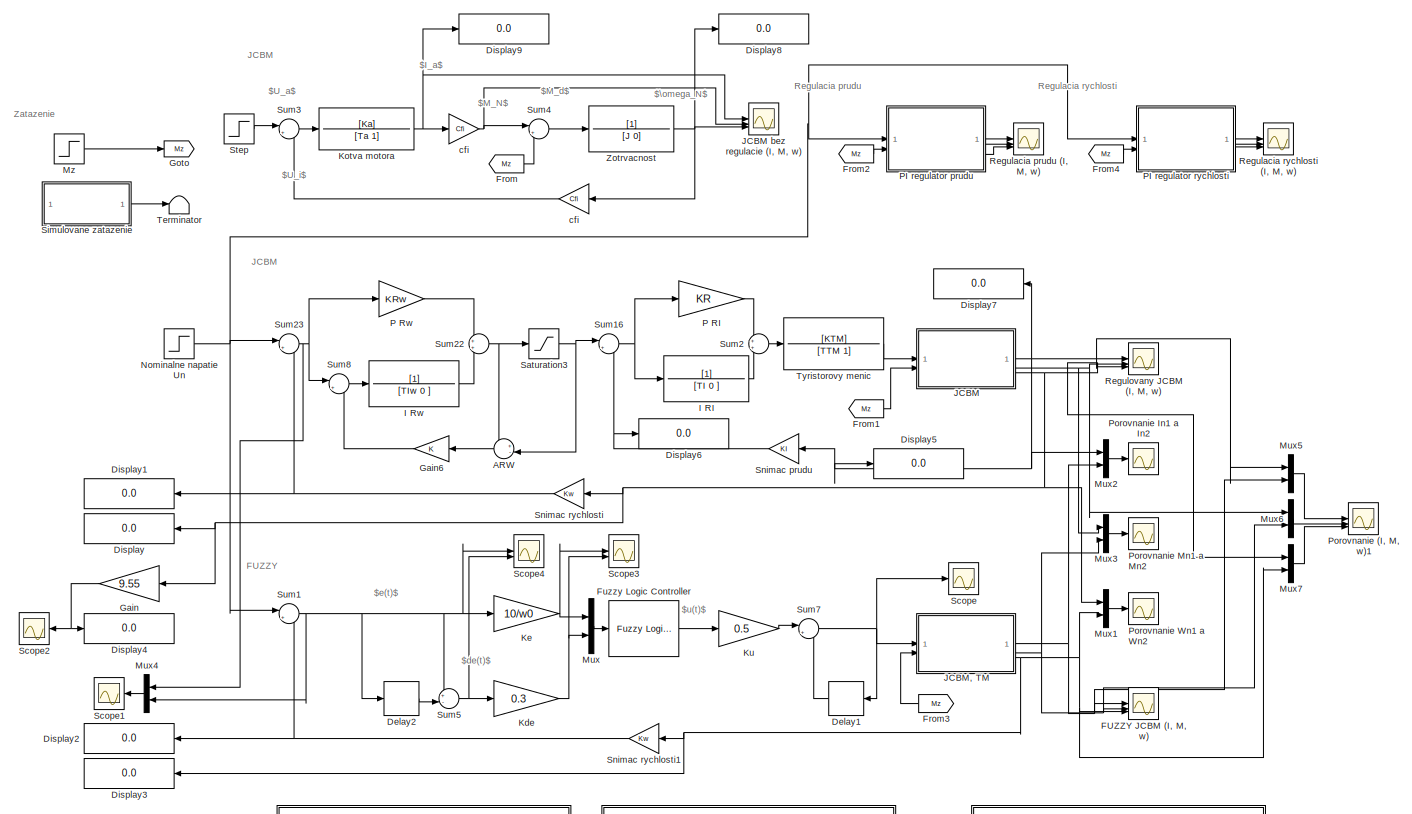
[diagram: root canvas - part 1/2, most of the canvas]
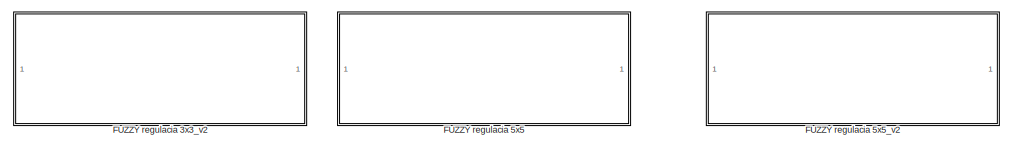
[diagram: root canvas - part 2/2, bottom center region]
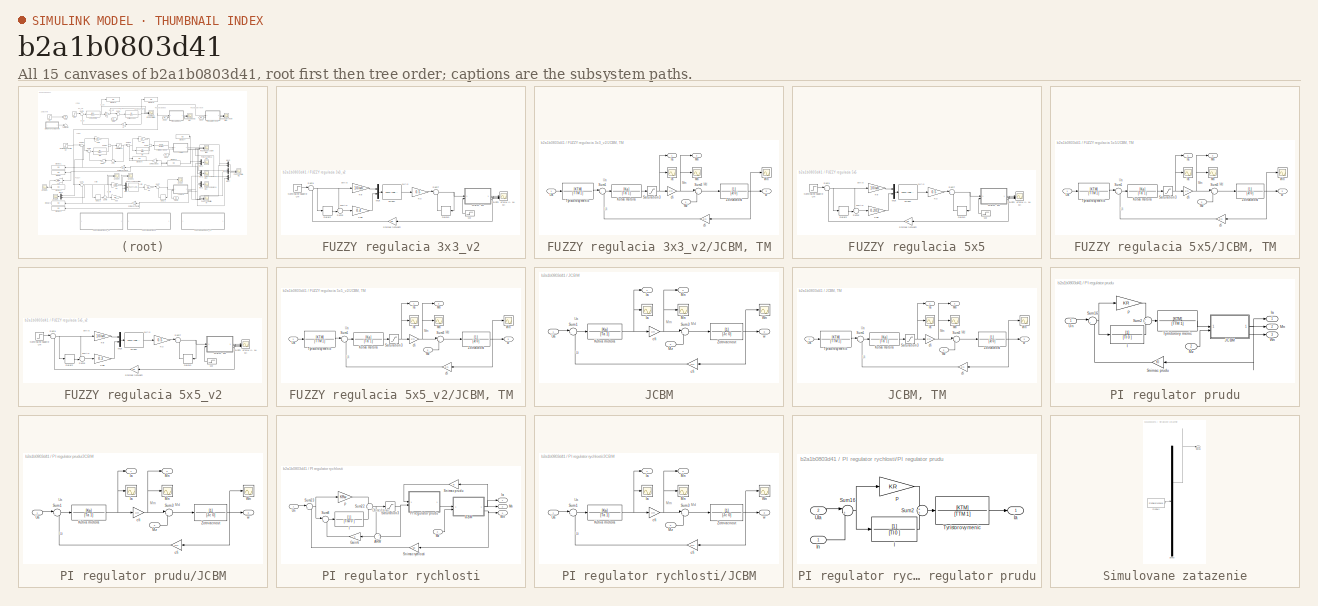
[diagram: thumbnail index - all 15 canvases of the model, root first then tree order]
MODEL slx_b2a1b0803d41
KIND model
CONFIG AbsTol = auto
CONFIG EnableMultiTasking = on
CONFIG FixedStep = auto
CONFIG MaxStep = auto
CONFIG MinStep = auto
CONFIG RelTol = 1e-6
CONFIG SampleTimeConstraint = Unconstrained
CONFIG SolverName = ode45
CONFIG StartTime = 0.0
CONFIG StopTime = 4
WORKSPACE source: mxarray member
WORKSPACE fuzzy33_v2: mamfis (value not decoded)
WORKSPACE fuzzy55: mamfis (value not decoded)
WORKSPACE fuzzy55_v2: mamfis (value not decoded)
BLOCK [Sum] ARW
  Inputs = +-|
BLOCK [Delay] Delay1
  DelayLength = 1
  InitialCondition = 0
  InputPortMap = u0
  SampleTime = 0.018
BLOCK [Delay] Delay2
  DelayLength = 1
  InitialCondition = 0
  InputPortMap = u0
  SampleTime = 0.018
BLOCK [Display] Display
  Decimation = 1
BLOCK [Display] Display1
  Decimation = 1
BLOCK [Display] Display2
  Decimation = 1
BLOCK [Display] Display3
  Decimation = 1
BLOCK [Display] Display4
  Decimation = 1
BLOCK [Display] Display5
  Decimation = 1
BLOCK [Display] Display6
  Decimation = 1
BLOCK [Display] Display7
  Decimation = 1
BLOCK [Display] Display8
  Decimation = 1
BLOCK [Display] Display9
  Decimation = 1
BLOCK [Scope] FUZZY JCBM (I, M, w)
  Floating = off
  NumInputPorts = 3
  ScopeSpecificationString = Simulink.scopes.TimeScopeBlockCfg('CurrentConfiguration', extmgr.ConfigurationSet(extmgr.Configuration('Core','General UI',true,'FigureColor',[1 1 1]),extmgr.Configuration('Core','Source UI',true),extmgr.Configuration('Sources','WiredSimulink',true,'DataLoggingVariableName','ScopeData8','DataLoggingLimitDataPoints',true,'DataLoggingSaveFormat','Array','DataLoggingDecimation','1','DataLoggingDecima...<+4525ch>
BLOCK [SubSystem] FUZZY regulacia 3x3_v2
BLOCK [Delay] FUZZY regulacia 3x3_v2/Delay1
  DelayLength = 1
  InitialCondition = 0
  InputPortMap = u0
  SampleTime = 0.018
BLOCK [Delay] FUZZY regulacia 3x3_v2/Delay2
  DelayLength = 1
  InitialCondition = 0
  InputPortMap = u0
  SampleTime = 0.018
BLOCK [Reference] FUZZY regulacia 3x3_v2/FUZZY  REF=fuzblock/Fuzzy Logic   (lib defined in mdl_858b3b3e7478)
Controller
  SourceBlock = fuzblock/Fuzzy Logic \nController
  SourceType = Fuzzy Inference System
BLOCK [Scope] FUZZY regulacia 3x3_v2/FUZZY JCBM (I, M, w)
  Floating = off
  NumInputPorts = 3
  ScopeSpecificationString = Simulink.scopes.TimeScopeBlockCfg('CurrentConfiguration', extmgr.ConfigurationSet(extmgr.Configuration('Core','General UI',true,'FigureColor',[1 1 1]),extmgr.Configuration('Core','Source UI',true),extmgr.Configuration('Sources','WiredSimulink',true,'DataLoggingVariableName','ScopeData8','DataLoggingLimitDataPoints',true,'DataLoggingSaveFormat','Array','DataLoggingDecimation','1','DataLoggingDecima...<+4514ch>  <repeated x3 — deduplicated; at blocks: FUZZY JCBM (I, M, w)>
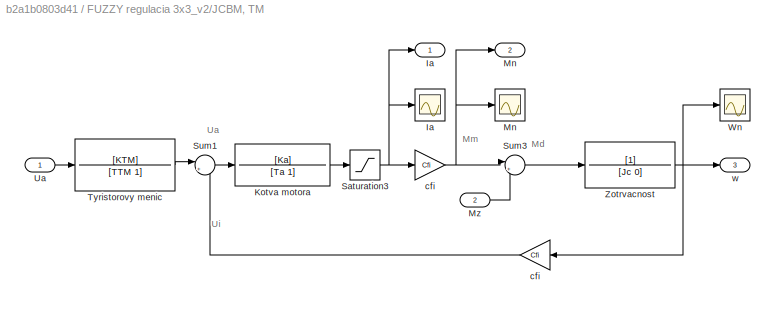
BLOCK [SubSystem] FUZZY regulacia 3x3_v2/JCBM, TM
BLOCK [Outport] FUZZY regulacia 3x3_v2/JCBM, TM/ Mn 
  Port = 2
BLOCK [Outport] FUZZY regulacia 3x3_v2/JCBM, TM/Ia
BLOCK [Scope] FUZZY regulacia 3x3_v2/JCBM, TM/Ia 
  Floating = off
  NumInputPorts = 1
  ScopeSpecificationString = Simulink.scopes.TimeScopeBlockCfg('CurrentConfiguration', extmgr.ConfigurationSet(extmgr.Configuration('Core','General UI',true),extmgr.Configuration('Core','Source UI',true),extmgr.Configuration('Sources','WiredSimulink',true,'DataLoggingVariableName','ScopeData3'),extmgr.Configuration('Visuals','Time Domain',true),extmgr.Configuration('Tools','Plot Navigation',true),extmgr.Configuration('Tools',...<+40ch>  <repeated x7 — deduplicated; at blocks: Ia>
BLOCK [TransferFcn] FUZZY regulacia 3x3_v2/JCBM, TM/Kotva motora
  Denominator = [Ta 1]
  Numerator = [Ka]
BLOCK [Scope] FUZZY regulacia 3x3_v2/JCBM, TM/Mn 
  Floating = off
  NumInputPorts = 1
  ScopeSpecificationString = Simulink.scopes.TimeScopeBlockCfg('CurrentConfiguration', extmgr.ConfigurationSet(extmgr.Configuration('Core','General UI',true),extmgr.Configuration('Core','Source UI',true),extmgr.Configuration('Sources','WiredSimulink',true,'DataLoggingVariableName','ScopeData2'),extmgr.Configuration('Visuals','Time Domain',true),extmgr.Configuration('Tools','Plot Navigation',true),extmgr.Configuration('Tools',...<+40ch>  <repeated x7 — deduplicated; at blocks: Mn>
BLOCK [Inport] FUZZY regulacia 3x3_v2/JCBM, TM/Mz
  Port = 2
BLOCK [Saturate] FUZZY regulacia 3x3_v2/JCBM, TM/Saturation3
  LowerLimit = -Imax
  UpperLimit = Imax
BLOCK [Sum] FUZZY regulacia 3x3_v2/JCBM, TM/Sum1
  Inputs = |+-
BLOCK [Sum] FUZZY regulacia 3x3_v2/JCBM, TM/Sum3
  Inputs = |+-
BLOCK [TransferFcn] FUZZY regulacia 3x3_v2/JCBM, TM/Tyristorovy menic
  Denominator = [TTM 1]
  Numerator = [KTM]
BLOCK [Inport] FUZZY regulacia 3x3_v2/JCBM, TM/Ua
BLOCK [Scope] FUZZY regulacia 3x3_v2/JCBM, TM/Wn
  Floating = off
  NumInputPorts = 1
  ScopeSpecificationString = Simulink.scopes.TimeScopeBlockCfg('CurrentConfiguration', extmgr.ConfigurationSet(extmgr.Configuration('Core','General UI',true),extmgr.Configuration('Core','Source UI',true),extmgr.Configuration('Sources','WiredSimulink',true,'DataLoggingVariableName','ScopeData4'),extmgr.Configuration('Visuals','Time Domain',true),extmgr.Configuration('Tools','Plot Navigation',true),extmgr.Configuration('Tools',...<+40ch>  <repeated x7 — deduplicated; at blocks: Wn>
BLOCK [TransferFcn] FUZZY regulacia 3x3_v2/JCBM, TM/Zotrvacnost
  Denominator = [Jc 0]
BLOCK [Gain] FUZZY regulacia 3x3_v2/JCBM, TM/cfi
  Gain = Cfi
BLOCK [Gain] FUZZY regulacia 3x3_v2/JCBM, TM/cfi 
  Gain = Cfi
BLOCK [Outport] FUZZY regulacia 3x3_v2/JCBM, TM/w 
  Port = 3
BLOCK [Gain] FUZZY regulacia 3x3_v2/Kde
  Gain = 0.4
BLOCK [Gain] FUZZY regulacia 3x3_v2/Ke
  Gain = 10/w0
BLOCK [Gain] FUZZY regulacia 3x3_v2/Ku
  Gain = 0.5
BLOCK [Mux] FUZZY regulacia 3x3_v2/Mux
  DisplayOption = bar
  Inputs = 2
BLOCK [Step] FUZZY regulacia 3x3_v2/Mz
  After = Mz
  SampleTime = 0
  Time = 2
BLOCK [Step] FUZZY regulacia 3x3_v2/Nominalne napatie Un
  After = 10
  SampleTime = 0
  Time = 0
BLOCK [Gain] FUZZY regulacia 3x3_v2/Snimac rychlosti
  Gain = Kw
BLOCK [Sum] FUZZY regulacia 3x3_v2/Sum1
  Inputs = |+-
BLOCK [Sum] FUZZY regulacia 3x3_v2/Sum5
  Inputs = +-|
BLOCK [Sum] FUZZY regulacia 3x3_v2/Sum7
  Inputs = |++
BLOCK [SubSystem] FUZZY regulacia 5x5
BLOCK [Delay] FUZZY regulacia 5x5/Delay1
  DelayLength = 1
  InitialCondition = 0
  InputPortMap = u0
  SampleTime = 0.018
BLOCK [Delay] FUZZY regulacia 5x5/Delay2
  DelayLength = 1
  InitialCondition = 0
  InputPortMap = u0
  SampleTime = 0.018
BLOCK [Reference] FUZZY regulacia 5x5/FUZZY  REF=fuzblock/Fuzzy Logic   (lib defined in mdl_858b3b3e7478)
Controller
  SourceBlock = fuzblock/Fuzzy Logic \nController
  SourceType = Fuzzy Inference System
BLOCK [Scope] FUZZY regulacia 5x5/FUZZY JCBM (I, M, w)
  Floating = off
  NumInputPorts = 3
BLOCK [SubSystem] FUZZY regulacia 5x5/JCBM, TM
BLOCK [Outport] FUZZY regulacia 5x5/JCBM, TM/ Mn 
  Port = 2
BLOCK [Outport] FUZZY regulacia 5x5/JCBM, TM/Ia
BLOCK [Scope] FUZZY regulacia 5x5/JCBM, TM/Ia 
  Floating = off
  NumInputPorts = 1
BLOCK [TransferFcn] FUZZY regulacia 5x5/JCBM, TM/Kotva motora
  Denominator = [Ta 1]
  Numerator = [Ka]
BLOCK [Scope] FUZZY regulacia 5x5/JCBM, TM/Mn 
  Floating = off
  NumInputPorts = 1
BLOCK [Inport] FUZZY regulacia 5x5/JCBM, TM/Mz
  Port = 2
BLOCK [Saturate] FUZZY regulacia 5x5/JCBM, TM/Saturation3
  LowerLimit = -Imax
  UpperLimit = Imax
BLOCK [Sum] FUZZY regulacia 5x5/JCBM, TM/Sum1
  Inputs = |+-
BLOCK [Sum] FUZZY regulacia 5x5/JCBM, TM/Sum3
  Inputs = |+-
BLOCK [TransferFcn] FUZZY regulacia 5x5/JCBM, TM/Tyristorovy menic
  Denominator = [TTM 1]
  Numerator = [KTM]
BLOCK [Inport] FUZZY regulacia 5x5/JCBM, TM/Ua
BLOCK [Scope] FUZZY regulacia 5x5/JCBM, TM/Wn
  Floating = off
  NumInputPorts = 1
BLOCK [TransferFcn] FUZZY regulacia 5x5/JCBM, TM/Zotrvacnost
  Denominator = [Jc 0]
BLOCK [Gain] FUZZY regulacia 5x5/JCBM, TM/cfi
  Gain = Cfi
BLOCK [Gain] FUZZY regulacia 5x5/JCBM, TM/cfi 
  Gain = Cfi
BLOCK [Outport] FUZZY regulacia 5x5/JCBM, TM/w 
  Port = 3
BLOCK [Gain] FUZZY regulacia 5x5/Kde
  Gain = 0.203
BLOCK [Gain] FUZZY regulacia 5x5/Ke
  Gain = 10/w0
BLOCK [Gain] FUZZY regulacia 5x5/Ku
  Gain = 0.5
BLOCK [Mux] FUZZY regulacia 5x5/Mux
  DisplayOption = bar
  Inputs = 2
BLOCK [Step] FUZZY regulacia 5x5/Mz
  After = Mz
  SampleTime = 0
  Time = 2
BLOCK [Step] FUZZY regulacia 5x5/Nominalne napatie Un
  After = 10
  SampleTime = 0
  Time = 0
BLOCK [Gain] FUZZY regulacia 5x5/Snimac rychlosti
  Gain = Kw
BLOCK [Sum] FUZZY regulacia 5x5/Sum1
  Inputs = |+-
BLOCK [Sum] FUZZY regulacia 5x5/Sum5
  Inputs = +-|
BLOCK [Sum] FUZZY regulacia 5x5/Sum7
  Inputs = |++
BLOCK [SubSystem] FUZZY regulacia 5x5_v2
BLOCK [Delay] FUZZY regulacia 5x5_v2/Delay1
  DelayLength = 1
  InitialCondition = 0
  InputPortMap = u0
  SampleTime = 0.018
BLOCK [Delay] FUZZY regulacia 5x5_v2/Delay2
  DelayLength = 1
  InitialCondition = 0
  InputPortMap = u0
  SampleTime = 0.018
BLOCK [Reference] FUZZY regulacia 5x5_v2/FUZZY  REF=fuzblock/Fuzzy Logic   (lib defined in mdl_858b3b3e7478)
Controller
  SourceBlock = fuzblock/Fuzzy Logic \nController
  SourceType = Fuzzy Inference System
BLOCK [Scope] FUZZY regulacia 5x5_v2/FUZZY JCBM (I, M, w)
  Floating = off
  NumInputPorts = 3
BLOCK [SubSystem] FUZZY regulacia 5x5_v2/JCBM, TM
BLOCK [Outport] FUZZY regulacia 5x5_v2/JCBM, TM/ Mn 
  Port = 2
BLOCK [Outport] FUZZY regulacia 5x5_v2/JCBM, TM/Ia
BLOCK [Scope] FUZZY regulacia 5x5_v2/JCBM, TM/Ia 
  Floating = off
  NumInputPorts = 1
BLOCK [TransferFcn] FUZZY regulacia 5x5_v2/JCBM, TM/Kotva motora
  Denominator = [Ta 1]
  Numerator = [Ka]
BLOCK [Scope] FUZZY regulacia 5x5_v2/JCBM, TM/Mn 
  Floating = off
  NumInputPorts = 1
BLOCK [Inport] FUZZY regulacia 5x5_v2/JCBM, TM/Mz
  Port = 2
BLOCK [Saturate] FUZZY regulacia 5x5_v2/JCBM, TM/Saturation3
  LowerLimit = -Imax
  UpperLimit = Imax
BLOCK [Sum] FUZZY regulacia 5x5_v2/JCBM, TM/Sum1
  Inputs = |+-
BLOCK [Sum] FUZZY regulacia 5x5_v2/JCBM, TM/Sum3
  Inputs = |+-
BLOCK [TransferFcn] FUZZY regulacia 5x5_v2/JCBM, TM/Tyristorovy menic
  Denominator = [TTM 1]
  Numerator = [KTM]
BLOCK [Inport] FUZZY regulacia 5x5_v2/JCBM, TM/Ua
BLOCK [Scope] FUZZY regulacia 5x5_v2/JCBM, TM/Wn
  Floating = off
  NumInputPorts = 1
BLOCK [TransferFcn] FUZZY regulacia 5x5_v2/JCBM, TM/Zotrvacnost
  Denominator = [Jc 0]
BLOCK [Gain] FUZZY regulacia 5x5_v2/JCBM, TM/cfi
  Gain = Cfi
BLOCK [Gain] FUZZY regulacia 5x5_v2/JCBM, TM/cfi 
  Gain = Cfi
BLOCK [Outport] FUZZY regulacia 5x5_v2/JCBM, TM/w 
  Port = 3
BLOCK [Gain] FUZZY regulacia 5x5_v2/Kde
  Gain = 0.3
BLOCK [Gain] FUZZY regulacia 5x5_v2/Ke
  Gain = 10/w0
BLOCK [Gain] FUZZY regulacia 5x5_v2/Ku
  Gain = 0.5
BLOCK [Mux] FUZZY regulacia 5x5_v2/Mux
  DisplayOption = bar
  Inputs = 2
BLOCK [Step] FUZZY regulacia 5x5_v2/Mz
  After = Mz
  SampleTime = 0
  Time = 2
BLOCK [Step] FUZZY regulacia 5x5_v2/Nominalne napatie Un
  After = 10
  SampleTime = 0
  Time = 0
BLOCK [Gain] FUZZY regulacia 5x5_v2/Snimac rychlosti
  Gain = Kw
BLOCK [Sum] FUZZY regulacia 5x5_v2/Sum1
  Inputs = |+-
BLOCK [Sum] FUZZY regulacia 5x5_v2/Sum5
  Inputs = +-|
BLOCK [Sum] FUZZY regulacia 5x5_v2/Sum7
  Inputs = |++
BLOCK [From] From
  GotoTag = Mz
BLOCK [From] From1
  GotoTag = Mz
BLOCK [From] From2
  GotoTag = Mz
BLOCK [From] From3
  GotoTag = Mz
BLOCK [From] From4
  GotoTag = Mz
BLOCK [Reference] Fuzzy Logic Controller  REF=fuzblock/Fuzzy Logic   (lib defined in mdl_858b3b3e7478)
Controller
  SourceBlock = fuzblock/Fuzzy Logic \nController
  SourceType = Fuzzy Inference System
BLOCK [Gain] Gain
  Gain = 9.55
BLOCK [Gain] Gain6
  NameLocation = top
BLOCK [Goto] Goto
  GotoTag = Mz
BLOCK [TransferFcn] I RI
  Denominator = [TI 0 ]
BLOCK [TransferFcn] I Rw
  Denominator = [TIw 0 ]
BLOCK [SubSystem] JCBM
BLOCK [Scope] JCBM bez regulacie (I, M, w)
  Floating = off
  NumInputPorts = 3
  ScopeSpecificationString = Simulink.scopes.TimeScopeBlockCfg('CurrentConfiguration', extmgr.ConfigurationSet(extmgr.Configuration('Core','General UI',true,'FigureColor',[1 1 1]),extmgr.Configuration('Core','Source UI',true),extmgr.Configuration('Sources','WiredSimulink',true,'DataLoggingVariableName','ScopeData1','DataLoggingLimitDataPoints',true,'DataLoggingSaveFormat','Array','DataLoggingDecimation','1','DataLoggingDecima...<+4529ch>
BLOCK [SubSystem] JCBM, TM
BLOCK [Outport] JCBM, TM/ Mn 
  Port = 2
BLOCK [Outport] JCBM, TM/Ia
BLOCK [Scope] JCBM, TM/Ia 
  Floating = off
  NumInputPorts = 1
BLOCK [TransferFcn] JCBM, TM/Kotva motora
  Denominator = [Ta 1]
  Numerator = [Ka]
BLOCK [Scope] JCBM, TM/Mn 
  Floating = off
  NumInputPorts = 1
BLOCK [Inport] JCBM, TM/Mz
  Port = 2
BLOCK [Saturate] JCBM, TM/Saturation3
  LowerLimit = -Imax
  UpperLimit = Imax
BLOCK [Sum] JCBM, TM/Sum1
  Inputs = |+-
BLOCK [Sum] JCBM, TM/Sum3
  Inputs = |+-
BLOCK [TransferFcn] JCBM, TM/Tyristorovy menic
  Denominator = [TTM 1]
  Numerator = [KTM]
BLOCK [Inport] JCBM, TM/Ua
BLOCK [Scope] JCBM, TM/Wn
  Floating = off
  NumInputPorts = 1
BLOCK [TransferFcn] JCBM, TM/Zotrvacnost
  Denominator = [Jc 0]
BLOCK [Gain] JCBM, TM/cfi
  Gain = Cfi
BLOCK [Gain] JCBM, TM/cfi 
  Gain = Cfi
BLOCK [Outport] JCBM, TM/w 
  Port = 3
BLOCK [Outport] JCBM/ Mn 
  Port = 2
BLOCK [Outport] JCBM/Ia
BLOCK [Scope] JCBM/Ia 
  Floating = off
  NumInputPorts = 1
BLOCK [TransferFcn] JCBM/Kotva motora
  Denominator = [Ta 1]
  Numerator = [Ka]
BLOCK [Scope] JCBM/Mn 
  Floating = off
  NumInputPorts = 1
BLOCK [Inport] JCBM/Mz
  Port = 2
BLOCK [Sum] JCBM/Sum1
  Inputs = |+-
BLOCK [Sum] JCBM/Sum3
  Inputs = |+-
BLOCK [Inport] JCBM/Ua
BLOCK [Scope] JCBM/Wn
  Floating = off
  NumInputPorts = 1
BLOCK [TransferFcn] JCBM/Zotrvacnost
  Denominator = [Jc 0]
BLOCK [Gain] JCBM/cfi
  Gain = Cfi
BLOCK [Gain] JCBM/cfi 
  Gain = Cfi
BLOCK [Outport] JCBM/w 
  Port = 3
BLOCK [Gain] Kde
  Gain = 0.3
BLOCK [Gain] Ke
  Gain = 10/w0
BLOCK [TransferFcn] Kotva motora
  Denominator = [Ta 1]
  Numerator = [Ka]
BLOCK [Gain] Ku
  Gain = 0.5
BLOCK [Mux] Mux
  DisplayOption = bar
  Inputs = 2
BLOCK [Mux] Mux1
  DisplayOption = bar
  Inputs = 2
BLOCK [Mux] Mux2
  DisplayOption = bar
  Inputs = 2
BLOCK [Mux] Mux3
  DisplayOption = bar
  Inputs = 2
BLOCK [Mux] Mux4
  DisplayOption = bar
  Inputs = 2
BLOCK [Mux] Mux5
  DisplayOption = bar
  Inputs = 2
BLOCK [Mux] Mux6
  DisplayOption = bar
  Inputs = 2
BLOCK [Mux] Mux7
  DisplayOption = bar
  Inputs = 2
BLOCK [Step] Mz
  After = Mz
  SampleTime = 0
  Time = 2
BLOCK [Step] Nominalne napatie Un
  After = 10
  SampleTime = 0
  Time = 0
BLOCK [Gain] P RI
  Gain = KR
BLOCK [Gain] P Rw
  Gain = KRw
BLOCK [SubSystem] PI regulator prudu
BLOCK [TransferFcn] PI regulator prudu/I
  Denominator = [TI 0 ]
BLOCK [Outport] PI regulator prudu/Ia
  NameLocation = right
BLOCK [SubSystem] PI regulator prudu/JCBM
BLOCK [Outport] PI regulator prudu/JCBM/ Mn 
  Port = 2
BLOCK [Outport] PI regulator prudu/JCBM/Ia
BLOCK [Scope] PI regulator prudu/JCBM/Ia 
  Floating = off
  NumInputPorts = 1
BLOCK [TransferFcn] PI regulator prudu/JCBM/Kotva motora
  Denominator = [Ta 1]
  Numerator = [Ka]
BLOCK [Scope] PI regulator prudu/JCBM/Mn 
  Floating = off
  NumInputPorts = 1
BLOCK [Inport] PI regulator prudu/JCBM/Mz
  Port = 2
BLOCK [Sum] PI regulator prudu/JCBM/Sum1
  Inputs = |+-
BLOCK [Sum] PI regulator prudu/JCBM/Sum3
  Inputs = |+-
BLOCK [Inport] PI regulator prudu/JCBM/Ua
BLOCK [Scope] PI regulator prudu/JCBM/Wn
  Floating = off
  NumInputPorts = 1
BLOCK [TransferFcn] PI regulator prudu/JCBM/Zotrvacnost
  Denominator = [Jc 0]
BLOCK [Gain] PI regulator prudu/JCBM/cfi
  Gain = Cfi
BLOCK [Gain] PI regulator prudu/JCBM/cfi 
  Gain = Cfi
BLOCK [Outport] PI regulator prudu/JCBM/w 
  Port = 3
BLOCK [Outport] PI regulator prudu/Mn
  NameLocation = right
  Port = 2
BLOCK [Inport] PI regulator prudu/Mz
  Port = 2
BLOCK [Gain] PI regulator prudu/P
  Gain = KR
BLOCK [Gain] PI regulator prudu/Snimac prudu
  Gain = KI
BLOCK [Sum] PI regulator prudu/Sum16
  Inputs = |+-
BLOCK [Sum] PI regulator prudu/Sum2
BLOCK [TransferFcn] PI regulator prudu/Tyristorovy menic
  Denominator = [TTM 1]
  Numerator = [KTM]
BLOCK [Inport] PI regulator prudu/Un
BLOCK [Outport] PI regulator prudu/Wn
  NameLocation = right
  Port = 3
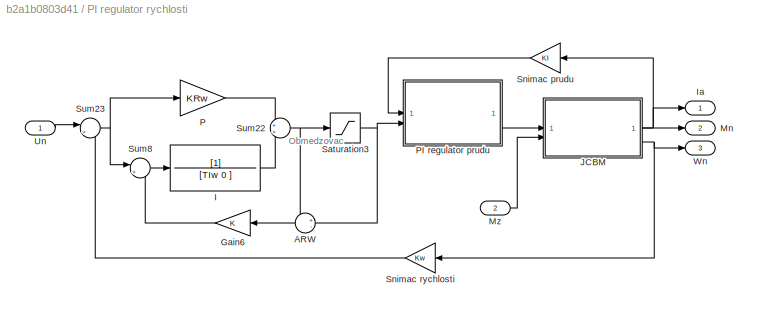
BLOCK [SubSystem] PI regulator rychlosti
BLOCK [Sum] PI regulator rychlosti/ARW
  Inputs = +-|
BLOCK [Gain] PI regulator rychlosti/Gain6
  NameLocation = top
BLOCK [TransferFcn] PI regulator rychlosti/I
  Denominator = [TIw 0 ]
BLOCK [Outport] PI regulator rychlosti/Ia
  NameLocation = right
BLOCK [SubSystem] PI regulator rychlosti/JCBM
BLOCK [Outport] PI regulator rychlosti/JCBM/ Mn 
  Port = 2
BLOCK [Outport] PI regulator rychlosti/JCBM/Ia
BLOCK [Scope] PI regulator rychlosti/JCBM/Ia 
  Floating = off
  NumInputPorts = 1
BLOCK [TransferFcn] PI regulator rychlosti/JCBM/Kotva motora
  Denominator = [Ta 1]
  Numerator = [Ka]
BLOCK [Scope] PI regulator rychlosti/JCBM/Mn 
  Floating = off
  NumInputPorts = 1
BLOCK [Inport] PI regulator rychlosti/JCBM/Mz
  Port = 2
BLOCK [Sum] PI regulator rychlosti/JCBM/Sum1
  Inputs = |+-
BLOCK [Sum] PI regulator rychlosti/JCBM/Sum3
  Inputs = |+-
BLOCK [Inport] PI regulator rychlosti/JCBM/Ua
BLOCK [Scope] PI regulator rychlosti/JCBM/Wn
  Floating = off
  NumInputPorts = 1
BLOCK [TransferFcn] PI regulator rychlosti/JCBM/Zotrvacnost
  Denominator = [Jc 0]
BLOCK [Gain] PI regulator rychlosti/JCBM/cfi
  Gain = Cfi
BLOCK [Gain] PI regulator rychlosti/JCBM/cfi 
  Gain = Cfi
BLOCK [Outport] PI regulator rychlosti/JCBM/w 
  Port = 3
BLOCK [Outport] PI regulator rychlosti/Mn
  NameLocation = right
  Port = 2
BLOCK [Inport] PI regulator rychlosti/Mz
  Port = 2
BLOCK [Gain] PI regulator rychlosti/P
  Gain = KRw
BLOCK [SubSystem] PI regulator rychlosti/PI regulator prudu
BLOCK [TransferFcn] PI regulator rychlosti/PI regulator prudu/I
  Denominator = [TI 0 ]
BLOCK [Outport] PI regulator rychlosti/PI regulator prudu/Ia
  NameLocation = right
BLOCK [Inport] PI regulator rychlosti/PI regulator prudu/In
BLOCK [Gain] PI regulator rychlosti/PI regulator prudu/P
  Gain = KR
BLOCK [Sum] PI regulator rychlosti/PI regulator prudu/Sum16
  Inputs = |+-
BLOCK [Sum] PI regulator rychlosti/PI regulator prudu/Sum2
BLOCK [TransferFcn] PI regulator rychlosti/PI regulator prudu/Tyristorovy menic
  Denominator = [TTM 1]
  Numerator = [KTM]
BLOCK [Inport] PI regulator rychlosti/PI regulator prudu/UIa
  Port = 2
BLOCK [Saturate] PI regulator rychlosti/Saturation3
  LowerLimit = -10
  UpperLimit = 10
BLOCK [Gain] PI regulator rychlosti/Snimac prudu
  Gain = KI
BLOCK [Gain] PI regulator rychlosti/Snimac rychlosti
  Gain = Kw
BLOCK [Sum] PI regulator rychlosti/Sum22
BLOCK [Sum] PI regulator rychlosti/Sum23
  Inputs = |+-
BLOCK [Sum] PI regulator rychlosti/Sum8
  Inputs = |+-
BLOCK [Inport] PI regulator rychlosti/Un
BLOCK [Outport] PI regulator rychlosti/Wn
  NameLocation = right
  Port = 3
BLOCK [Scope] Porovnanie (I, M, w)1
  Floating = off
  NumInputPorts = 3
  ScopeSpecificationString = Simulink.scopes.TimeScopeBlockCfg('CurrentConfiguration', extmgr.ConfigurationSet(extmgr.Configuration('Core','General UI',true,'FigureColor',[1 1 1]),extmgr.Configuration('Core','Source UI',true),extmgr.Configuration('Sources','WiredSimulink',true,'DataLoggingVariableName','ScopeData1','DataLoggingLimitDataPoints',true,'DataLoggingSaveFormat','Array','DataLoggingDecimation','1','DataLoggingDecima...<+4801ch>
BLOCK [Scope] Porovnanie In1 a In2
  Floating = off
  NumInputPorts = 1
  ScopeSpecificationString = Simulink.scopes.TimeScopeBlockCfg('CurrentConfiguration', extmgr.ConfigurationSet(extmgr.Configuration('Core','General UI',true,'FigureColor',[1 1 1]),extmgr.Configuration('Core','Source UI',true),extmgr.Configuration('Sources','WiredSimulink',true,'DataLoggingLimitDataPoints',true,'DataLoggingSaveFormat','Array','DataLoggingDecimation','1','DataLoggingDecimateData',true),extmgr.Configuration('Vis...<+3016ch>
BLOCK [Scope] Porovnanie Mn1 a Mn2
  Floating = off
  NumInputPorts = 1
  ScopeSpecificationString = Simulink.scopes.TimeScopeBlockCfg('CurrentConfiguration', extmgr.ConfigurationSet(extmgr.Configuration('Core','General UI',true,'FigureColor',[1 1 1]),extmgr.Configuration('Core','Source UI',true),extmgr.Configuration('Sources','WiredSimulink',true,'DataLoggingLimitDataPoints',true,'DataLoggingSaveFormat','Array','DataLoggingDecimation','1','DataLoggingDecimateData',true,'DataLoggingVariableName',...<+3059ch>
BLOCK [Scope] Porovnanie Wn1 a Wn2
  Floating = off
  NumInputPorts = 1
  ScopeSpecificationString = Simulink.scopes.TimeScopeBlockCfg('CurrentConfiguration', extmgr.ConfigurationSet(extmgr.Configuration('Core','General UI',true,'FigureColor',[1 1 1]),extmgr.Configuration('Core','Source UI',true),extmgr.Configuration('Sources','WiredSimulink',true,'DataLoggingVariableName','ScopeData5','DataLoggingLimitDataPoints',true,'DataLoggingSaveFormat','Array','DataLoggingDecimation','1','DataLoggingDecima...<+2877ch>
BLOCK [Scope] Regulacia prudu (I, M, w)
  Floating = off
  NumInputPorts = 3
  ScopeSpecificationString = Simulink.scopes.TimeScopeBlockCfg('CurrentConfiguration', extmgr.ConfigurationSet(extmgr.Configuration('Core','General UI',true,'FigureColor',[1 1 1]),extmgr.Configuration('Core','Source UI',true),extmgr.Configuration('Sources','WiredSimulink',true,'DataLoggingVariableName','ScopeData6','DataLoggingLimitDataPoints',true,'DataLoggingSaveFormat','Array','DataLoggingDecimation','1','DataLoggingDecima...<+4522ch>
BLOCK [Scope] Regulacia rychlosti (I, M, w)
  Floating = off
  NumInputPorts = 3
  ScopeSpecificationString = Simulink.scopes.TimeScopeBlockCfg('CurrentConfiguration', extmgr.ConfigurationSet(extmgr.Configuration('Core','General UI',true,'FigureColor',[1 1 1]),extmgr.Configuration('Core','Source UI',true),extmgr.Configuration('Sources','WiredSimulink',true,'DataLoggingVariableName','ScopeData1','DataLoggingLimitDataPoints',true,'DataLoggingSaveFormat','Array','DataLoggingDecimation','1','DataLoggingDecima...<+4525ch>
BLOCK [Scope] Regulovany JCBM (I, M, w)
  Floating = off
  NumInputPorts = 3
  ScopeSpecificationString = Simulink.scopes.TimeScopeBlockCfg('CurrentConfiguration', extmgr.ConfigurationSet(extmgr.Configuration('Core','General UI',true,'FigureColor',[1 1 1]),extmgr.Configuration('Core','Source UI',true),extmgr.Configuration('Sources','WiredSimulink',true,'DataLoggingVariableName','ScopeData5','DataLoggingLimitDataPoints',true,'DataLoggingSaveFormat','Array','DataLoggingDecimation','1','DataLoggingDecima...<+4525ch>
BLOCK [Saturate] Saturation3
  LowerLimit = -10
  UpperLimit = 10
BLOCK [Scope] Scope
  Floating = off
  NumInputPorts = 1
  ScopeSpecificationString = Simulink.scopes.TimeScopeBlockCfg('CurrentConfiguration', extmgr.ConfigurationSet(extmgr.Configuration('Core','General UI',true),extmgr.Configuration('Core','Source UI',true),extmgr.Configuration('Sources','WiredSimulink',true,'DataLoggingVariableName','ScopeData6'),extmgr.Configuration('Visuals','Time Domain',true,'SerializedDisplays',{struct('MinYLimReal','-1.00000','MaxYLimReal','1.00000','YLab...<+1392ch>
BLOCK [Scope] Scope1
  Floating = off
  NumInputPorts = 1
  ScopeSpecificationString = Simulink.scopes.TimeScopeBlockCfg('CurrentConfiguration', extmgr.ConfigurationSet(extmgr.Configuration('Core','General UI',true),extmgr.Configuration('Core','Source UI',true),extmgr.Configuration('Sources','WiredSimulink',true,'DataLoggingVariableName','ScopeData1'),extmgr.Configuration('Visuals','Time Domain',true,'SerializedDisplays',{struct('MinYLimReal','-54.07297','MaxYLimReal','472.67477','Y...<+1500ch>
BLOCK [Scope] Scope2
  Floating = off
  NumInputPorts = 1
  ScopeSpecificationString = Simulink.scopes.TimeScopeBlockCfg('CurrentConfiguration', extmgr.ConfigurationSet(extmgr.Configuration('Core','General UI',true),extmgr.Configuration('Core','Source UI',true),extmgr.Configuration('Sources','WiredSimulink',true,'DataLoggingVariableName','ScopeData2'),extmgr.Configuration('Visuals','Time Domain',true,'SerializedDisplays',{struct('MinYLimReal','-176.84977','MaxYLimReal','1591.64792',...<+1408ch>
BLOCK [Scope] Scope3
  Floating = off
  NumInputPorts = 2
  ScopeSpecificationString = Simulink.scopes.TimeScopeBlockCfg('CurrentConfiguration', extmgr.ConfigurationSet(extmgr.Configuration('Core','General UI',true),extmgr.Configuration('Core','Source UI',true),extmgr.Configuration('Sources','WiredSimulink',true,'DataLoggingVariableName','ScopeData1'),extmgr.Configuration('Visuals','Time Domain',true,'SerializedDisplays',{struct('MinYLimReal','-0.36362','MaxYLimReal','2.29596','YLab...<+1397ch>
BLOCK [Scope] Scope4
  Floating = off
  NumInputPorts = 2
  ScopeSpecificationString = Simulink.scopes.TimeScopeBlockCfg('CurrentConfiguration', extmgr.ConfigurationSet(extmgr.Configuration('Core','General UI',true),extmgr.Configuration('Core','Source UI',true),extmgr.Configuration('Sources','WiredSimulink',true,'DataLoggingVariableName','ScopeData2'),extmgr.Configuration('Visuals','Time Domain',true,'SerializedDisplays',{struct('MinYLimReal','-1.79124','MaxYLimReal','11.31014','YLa...<+1403ch>
BLOCK [SubSystem] Simulovane zatazenie
  ClipboardFcn = sigbuilder_block('clipboard');
  CloseFcn = sigbuilder_block('close');
  ContinueFcn = sigbuilder_block('continue');
  CopyFcn = sigbuilder_block('copy');
  DeleteFcn = sigbuilder_block('delete');
  LoadFcn = sigbuilder_block('load');
  MaskHideContents = on
  ModelCloseFcn = sigbuilder_block('modelClose');
  NameChangeFcn = sigbuilder_block('namechange');
  OpenFcn = sigbuilder_block('open',[717 162.75 551.25 360 ]);
  PauseFcn = sigbuilder_block('pause');
  PreSaveFcn = sigbuilder_block('preSave');
  StartFcn = sigbuilder_block('start');
  StopFcn = sigbuilder_block('stop');
  Tag = STV Subsys
BLOCK [Demux] Simulovane zatazenie/Demux
  DisplayOption = none
  Outputs = 1
  Tag = STV Demux
BLOCK [FromWorkspace] Simulovane zatazenie/FromWs
  Tag = STV FromWs
  VariableName = tuvar
BLOCK [Outport] Simulovane zatazenie/Signal 1
  Tag = STV Outport
BLOCK [Gain] Snimac prudu
  Gain = KI
BLOCK [Gain] Snimac rychlosti
  Gain = Kw
BLOCK [Gain] Snimac rychlosti1
  Gain = Kw
BLOCK [Step] Step
  After = Un
  SampleTime = 0
  Time = 0
BLOCK [Sum] Sum1
  Inputs = |+-
BLOCK [Sum] Sum16
  Inputs = |+-
BLOCK [Sum] Sum2
BLOCK [Sum] Sum22
BLOCK [Sum] Sum23
  Inputs = |+-
BLOCK [Sum] Sum3
  Inputs = |+-
BLOCK [Sum] Sum4
  Inputs = |+-
BLOCK [Sum] Sum5
  Inputs = +-|
BLOCK [Sum] Sum7
  Inputs = |++
BLOCK [Sum] Sum8
  Inputs = |+-
BLOCK [Terminator] Terminator
BLOCK [TransferFcn] Tyristorovy menic
  Denominator = [TTM 1]
  Numerator = [KTM]
BLOCK [TransferFcn] Zotrvacnost
  Denominator = [J 0]
BLOCK [Gain] cfi
  Gain = Cfi
BLOCK [Gain] cfi 
  Gain = Cfi
ANNOTATION (root): $I_a$
ANNOTATION (root): $M_N$
ANNOTATION (root): $M_d$
ANNOTATION (root): $U_a$
ANNOTATION (root): $U_i$
ANNOTATION (root): $\omega_N$
ANNOTATION (root): $de(t)$
ANNOTATION (root): $e(t)$
ANNOTATION (root): $u(t)$
ANNOTATION (root): FUZZY
ANNOTATION (root): JCBM
ANNOTATION (root): Regulacia prudu
ANNOTATION (root): Regulacia rychlosti
ANNOTATION (root): Zatazenie
ANNOTATION FUZZY regulacia 3x3_v2: $de(t)$
ANNOTATION FUZZY regulacia 3x3_v2: $e(t)$
ANNOTATION FUZZY regulacia 3x3_v2: $u(t)$
ANNOTATION FUZZY regulacia 3x3_v2/JCBM, TM: Md
ANNOTATION FUZZY regulacia 3x3_v2/JCBM, TM: Mm
ANNOTATION FUZZY regulacia 3x3_v2/JCBM, TM: Ua
ANNOTATION FUZZY regulacia 3x3_v2/JCBM, TM: Ui
ANNOTATION FUZZY regulacia 5x5: $de(t)$
ANNOTATION FUZZY regulacia 5x5: $e(t)$
ANNOTATION FUZZY regulacia 5x5: $u(t)$
ANNOTATION FUZZY regulacia 5x5/JCBM, TM: Md
ANNOTATION FUZZY regulacia 5x5/JCBM, TM: Mm
ANNOTATION FUZZY regulacia 5x5/JCBM, TM: Ua
ANNOTATION FUZZY regulacia 5x5/JCBM, TM: Ui
ANNOTATION FUZZY regulacia 5x5_v2: $de(t)$
ANNOTATION FUZZY regulacia 5x5_v2: $e(t)$
ANNOTATION FUZZY regulacia 5x5_v2: $u(t)$
ANNOTATION FUZZY regulacia 5x5_v2/JCBM, TM: Md
ANNOTATION FUZZY regulacia 5x5_v2/JCBM, TM: Mm
ANNOTATION FUZZY regulacia 5x5_v2/JCBM, TM: Ua
ANNOTATION FUZZY regulacia 5x5_v2/JCBM, TM: Ui
ANNOTATION JCBM: Md
ANNOTATION JCBM: Mm
ANNOTATION JCBM: Ua
ANNOTATION JCBM: Ui
ANNOTATION JCBM, TM: Md
ANNOTATION JCBM, TM: Mm
ANNOTATION JCBM, TM: Ua
ANNOTATION JCBM, TM: Ui
ANNOTATION PI regulator prudu/JCBM: Md
ANNOTATION PI regulator prudu/JCBM: Mm
ANNOTATION PI regulator prudu/JCBM: Ua
ANNOTATION PI regulator prudu/JCBM: Ui
ANNOTATION PI regulator rychlosti: Obmedzovac
ANNOTATION PI regulator rychlosti/JCBM: Md
ANNOTATION PI regulator rychlosti/JCBM: Mm
ANNOTATION PI regulator rychlosti/JCBM: Ua
ANNOTATION PI regulator rychlosti/JCBM: Ui
LINE ARW:1 -> Gain6:1
LINE Delay1:1 -> Sum7:2
LINE Delay2:1 -> Sum5:2
LINE FUZZY regulacia 3x3_v2/Delay1:1 -> FUZZY regulacia 3x3_v2/Sum7:2
LINE FUZZY regulacia 3x3_v2/Delay2:1 -> FUZZY regulacia 3x3_v2/Sum5:2
LINE FUZZY regulacia 3x3_v2/FUZZY:1 -> FUZZY regulacia 3x3_v2/Ku:1
LINE FUZZY regulacia 3x3_v2/JCBM, TM/Kotva motora:1 -> FUZZY regulacia 3x3_v2/JCBM, TM/Saturation3:1
LINE FUZZY regulacia 3x3_v2/JCBM, TM/Mz:1 -> FUZZY regulacia 3x3_v2/JCBM, TM/Sum3:2
NET FUZZY regulacia 3x3_v2/JCBM, TM/Saturation3:1 -> FUZZY regulacia 3x3_v2/JCBM, TM/Ia :1, FUZZY regulacia 3x3_v2/JCBM, TM/Ia:1, FUZZY regulacia 3x3_v2/JCBM, TM/cfi :1
LINE FUZZY regulacia 3x3_v2/JCBM, TM/Sum1:1 -> FUZZY regulacia 3x3_v2/JCBM, TM/Kotva motora:1
LINE FUZZY regulacia 3x3_v2/JCBM, TM/Sum3:1 -> FUZZY regulacia 3x3_v2/JCBM, TM/Zotrvacnost:1
LINE FUZZY regulacia 3x3_v2/JCBM, TM/Tyristorovy menic:1 -> FUZZY regulacia 3x3_v2/JCBM, TM/Sum1:1
LINE FUZZY regulacia 3x3_v2/JCBM, TM/Ua:1 -> FUZZY regulacia 3x3_v2/JCBM, TM/Tyristorovy menic:1
NET FUZZY regulacia 3x3_v2/JCBM, TM/Zotrvacnost:1 -> FUZZY regulacia 3x3_v2/JCBM, TM/Wn:1, FUZZY regulacia 3x3_v2/JCBM, TM/cfi:1, FUZZY regulacia 3x3_v2/JCBM, TM/w :1
NET FUZZY regulacia 3x3_v2/JCBM, TM/cfi :1 -> FUZZY regulacia 3x3_v2/JCBM, TM/ Mn :1, FUZZY regulacia 3x3_v2/JCBM, TM/Mn :1, FUZZY regulacia 3x3_v2/JCBM, TM/Sum3:1
LINE FUZZY regulacia 3x3_v2/JCBM, TM/cfi:1 -> FUZZY regulacia 3x3_v2/JCBM, TM/Sum1:2
LINE FUZZY regulacia 3x3_v2/JCBM, TM:1 -> FUZZY regulacia 3x3_v2/FUZZY JCBM (I, M, w):1
LINE FUZZY regulacia 3x3_v2/JCBM, TM:2 -> FUZZY regulacia 3x3_v2/FUZZY JCBM (I, M, w):2
NET FUZZY regulacia 3x3_v2/JCBM, TM:3 -> FUZZY regulacia 3x3_v2/FUZZY JCBM (I, M, w):3, FUZZY regulacia 3x3_v2/Snimac rychlosti:1
LINE FUZZY regulacia 3x3_v2/Kde:1 -> FUZZY regulacia 3x3_v2/Mux:2
LINE FUZZY regulacia 3x3_v2/Ke:1 -> FUZZY regulacia 3x3_v2/Mux:1
LINE FUZZY regulacia 3x3_v2/Ku:1 -> FUZZY regulacia 3x3_v2/Sum7:1
LINE FUZZY regulacia 3x3_v2/Mux:1 -> FUZZY regulacia 3x3_v2/FUZZY:1
LINE FUZZY regulacia 3x3_v2/Mz:1 -> FUZZY regulacia 3x3_v2/JCBM, TM:2
LINE FUZZY regulacia 3x3_v2/Nominalne napatie Un:1 -> FUZZY regulacia 3x3_v2/Sum1:1
LINE FUZZY regulacia 3x3_v2/Snimac rychlosti:1 -> FUZZY regulacia 3x3_v2/Sum1:2
NET FUZZY regulacia 3x3_v2/Sum1:1 -> FUZZY regulacia 3x3_v2/Delay2:1, FUZZY regulacia 3x3_v2/Ke:1, FUZZY regulacia 3x3_v2/Sum5:1
LINE FUZZY regulacia 3x3_v2/Sum5:1 -> FUZZY regulacia 3x3_v2/Kde:1
NET FUZZY regulacia 3x3_v2/Sum7:1 -> FUZZY regulacia 3x3_v2/Delay1:1, FUZZY regulacia 3x3_v2/JCBM, TM:1
LINE FUZZY regulacia 5x5/Delay1:1 -> FUZZY regulacia 5x5/Sum7:2
LINE FUZZY regulacia 5x5/Delay2:1 -> FUZZY regulacia 5x5/Sum5:2
LINE FUZZY regulacia 5x5/FUZZY:1 -> FUZZY regulacia 5x5/Ku:1
LINE FUZZY regulacia 5x5/JCBM, TM/Kotva motora:1 -> FUZZY regulacia 5x5/JCBM, TM/Saturation3:1
LINE FUZZY regulacia 5x5/JCBM, TM/Mz:1 -> FUZZY regulacia 5x5/JCBM, TM/Sum3:2
NET FUZZY regulacia 5x5/JCBM, TM/Saturation3:1 -> FUZZY regulacia 5x5/JCBM, TM/Ia :1, FUZZY regulacia 5x5/JCBM, TM/Ia:1, FUZZY regulacia 5x5/JCBM, TM/cfi :1
LINE FUZZY regulacia 5x5/JCBM, TM/Sum1:1 -> FUZZY regulacia 5x5/JCBM, TM/Kotva motora:1
LINE FUZZY regulacia 5x5/JCBM, TM/Sum3:1 -> FUZZY regulacia 5x5/JCBM, TM/Zotrvacnost:1
LINE FUZZY regulacia 5x5/JCBM, TM/Tyristorovy menic:1 -> FUZZY regulacia 5x5/JCBM, TM/Sum1:1
LINE FUZZY regulacia 5x5/JCBM, TM/Ua:1 -> FUZZY regulacia 5x5/JCBM, TM/Tyristorovy menic:1
NET FUZZY regulacia 5x5/JCBM, TM/Zotrvacnost:1 -> FUZZY regulacia 5x5/JCBM, TM/Wn:1, FUZZY regulacia 5x5/JCBM, TM/cfi:1, FUZZY regulacia 5x5/JCBM, TM/w :1
NET FUZZY regulacia 5x5/JCBM, TM/cfi :1 -> FUZZY regulacia 5x5/JCBM, TM/ Mn :1, FUZZY regulacia 5x5/JCBM, TM/Mn :1, FUZZY regulacia 5x5/JCBM, TM/Sum3:1
LINE FUZZY regulacia 5x5/JCBM, TM/cfi:1 -> FUZZY regulacia 5x5/JCBM, TM/Sum1:2
LINE FUZZY regulacia 5x5/JCBM, TM:1 -> FUZZY regulacia 5x5/FUZZY JCBM (I, M, w):1
LINE FUZZY regulacia 5x5/JCBM, TM:2 -> FUZZY regulacia 5x5/FUZZY JCBM (I, M, w):2
NET FUZZY regulacia 5x5/JCBM, TM:3 -> FUZZY regulacia 5x5/FUZZY JCBM (I, M, w):3, FUZZY regulacia 5x5/Snimac rychlosti:1
LINE FUZZY regulacia 5x5/Kde:1 -> FUZZY regulacia 5x5/Mux:2
LINE FUZZY regulacia 5x5/Ke:1 -> FUZZY regulacia 5x5/Mux:1
LINE FUZZY regulacia 5x5/Ku:1 -> FUZZY regulacia 5x5/Sum7:1
LINE FUZZY regulacia 5x5/Mux:1 -> FUZZY regulacia 5x5/FUZZY:1
LINE FUZZY regulacia 5x5/Mz:1 -> FUZZY regulacia 5x5/JCBM, TM:2
LINE FUZZY regulacia 5x5/Nominalne napatie Un:1 -> FUZZY regulacia 5x5/Sum1:1
LINE FUZZY regulacia 5x5/Snimac rychlosti:1 -> FUZZY regulacia 5x5/Sum1:2
NET FUZZY regulacia 5x5/Sum1:1 -> FUZZY regulacia 5x5/Delay2:1, FUZZY regulacia 5x5/Ke:1, FUZZY regulacia 5x5/Sum5:1
LINE FUZZY regulacia 5x5/Sum5:1 -> FUZZY regulacia 5x5/Kde:1
NET FUZZY regulacia 5x5/Sum7:1 -> FUZZY regulacia 5x5/Delay1:1, FUZZY regulacia 5x5/JCBM, TM:1
LINE FUZZY regulacia 5x5_v2/Delay1:1 -> FUZZY regulacia 5x5_v2/Sum7:2
LINE FUZZY regulacia 5x5_v2/Delay2:1 -> FUZZY regulacia 5x5_v2/Sum5:2
LINE FUZZY regulacia 5x5_v2/FUZZY:1 -> FUZZY regulacia 5x5_v2/Ku:1
LINE FUZZY regulacia 5x5_v2/JCBM, TM/Kotva motora:1 -> FUZZY regulacia 5x5_v2/JCBM, TM/Saturation3:1
LINE FUZZY regulacia 5x5_v2/JCBM, TM/Mz:1 -> FUZZY regulacia 5x5_v2/JCBM, TM/Sum3:2
NET FUZZY regulacia 5x5_v2/JCBM, TM/Saturation3:1 -> FUZZY regulacia 5x5_v2/JCBM, TM/Ia :1, FUZZY regulacia 5x5_v2/JCBM, TM/Ia:1, FUZZY regulacia 5x5_v2/JCBM, TM/cfi :1
LINE FUZZY regulacia 5x5_v2/JCBM, TM/Sum1:1 -> FUZZY regulacia 5x5_v2/JCBM, TM/Kotva motora:1
LINE FUZZY regulacia 5x5_v2/JCBM, TM/Sum3:1 -> FUZZY regulacia 5x5_v2/JCBM, TM/Zotrvacnost:1
LINE FUZZY regulacia 5x5_v2/JCBM, TM/Tyristorovy menic:1 -> FUZZY regulacia 5x5_v2/JCBM, TM/Sum1:1
LINE FUZZY regulacia 5x5_v2/JCBM, TM/Ua:1 -> FUZZY regulacia 5x5_v2/JCBM, TM/Tyristorovy menic:1
NET FUZZY regulacia 5x5_v2/JCBM, TM/Zotrvacnost:1 -> FUZZY regulacia 5x5_v2/JCBM, TM/Wn:1, FUZZY regulacia 5x5_v2/JCBM, TM/cfi:1, FUZZY regulacia 5x5_v2/JCBM, TM/w :1
NET FUZZY regulacia 5x5_v2/JCBM, TM/cfi :1 -> FUZZY regulacia 5x5_v2/JCBM, TM/ Mn :1, FUZZY regulacia 5x5_v2/JCBM, TM/Mn :1, FUZZY regulacia 5x5_v2/JCBM, TM/Sum3:1
LINE FUZZY regulacia 5x5_v2/JCBM, TM/cfi:1 -> FUZZY regulacia 5x5_v2/JCBM, TM/Sum1:2
LINE FUZZY regulacia 5x5_v2/JCBM, TM:1 -> FUZZY regulacia 5x5_v2/FUZZY JCBM (I, M, w):1
LINE FUZZY regulacia 5x5_v2/JCBM, TM:2 -> FUZZY regulacia 5x5_v2/FUZZY JCBM (I, M, w):2
NET FUZZY regulacia 5x5_v2/JCBM, TM:3 -> FUZZY regulacia 5x5_v2/FUZZY JCBM (I, M, w):3, FUZZY regulacia 5x5_v2/Snimac rychlosti:1
LINE FUZZY regulacia 5x5_v2/Kde:1 -> FUZZY regulacia 5x5_v2/Mux:2
LINE FUZZY regulacia 5x5_v2/Ke:1 -> FUZZY regulacia 5x5_v2/Mux:1
LINE FUZZY regulacia 5x5_v2/Ku:1 -> FUZZY regulacia 5x5_v2/Sum7:1
LINE FUZZY regulacia 5x5_v2/Mux:1 -> FUZZY regulacia 5x5_v2/FUZZY:1
LINE FUZZY regulacia 5x5_v2/Mz:1 -> FUZZY regulacia 5x5_v2/JCBM, TM:2
LINE FUZZY regulacia 5x5_v2/Nominalne napatie Un:1 -> FUZZY regulacia 5x5_v2/Sum1:1
LINE FUZZY regulacia 5x5_v2/Snimac rychlosti:1 -> FUZZY regulacia 5x5_v2/Sum1:2
NET FUZZY regulacia 5x5_v2/Sum1:1 -> FUZZY regulacia 5x5_v2/Delay2:1, FUZZY regulacia 5x5_v2/Ke:1, FUZZY regulacia 5x5_v2/Sum5:1
LINE FUZZY regulacia 5x5_v2/Sum5:1 -> FUZZY regulacia 5x5_v2/Kde:1
NET FUZZY regulacia 5x5_v2/Sum7:1 -> FUZZY regulacia 5x5_v2/Delay1:1, FUZZY regulacia 5x5_v2/JCBM, TM:1
LINE From1:1 -> JCBM:2
LINE From2:1 -> PI regulator prudu:2
LINE From3:1 -> JCBM, TM:2
LINE From4:1 -> PI regulator rychlosti:2
LINE From:1 -> Sum4:2
LINE Fuzzy Logic Controller:1 -> Ku:1
LINE Gain6:1 -> Sum8:2
NET Gain:1 -> Display4:1, Scope2:1
LINE I RI:1 -> Sum2:2
LINE I Rw:1 -> Sum22:2
LINE JCBM, TM/Kotva motora:1 -> JCBM, TM/Saturation3:1
LINE JCBM, TM/Mz:1 -> JCBM, TM/Sum3:2
NET JCBM, TM/Saturation3:1 -> JCBM, TM/Ia :1, JCBM, TM/Ia:1, JCBM, TM/cfi :1
LINE JCBM, TM/Sum1:1 -> JCBM, TM/Kotva motora:1
LINE JCBM, TM/Sum3:1 -> JCBM, TM/Zotrvacnost:1
LINE JCBM, TM/Tyristorovy menic:1 -> JCBM, TM/Sum1:1
LINE JCBM, TM/Ua:1 -> JCBM, TM/Tyristorovy menic:1
NET JCBM, TM/Zotrvacnost:1 -> JCBM, TM/Wn:1, JCBM, TM/cfi:1, JCBM, TM/w :1
NET JCBM, TM/cfi :1 -> JCBM, TM/ Mn :1, JCBM, TM/Mn :1, JCBM, TM/Sum3:1
LINE JCBM, TM/cfi:1 -> JCBM, TM/Sum1:2
NET JCBM, TM:1 -> FUZZY JCBM (I, M, w):1, Mux2:2, Mux5:2
NET JCBM, TM:2 -> FUZZY JCBM (I, M, w):2, Mux3:2, Mux6:2
NET JCBM, TM:3 -> Display3:1, FUZZY JCBM (I, M, w):3, Mux1:2, Mux7:2, Snimac rychlosti1:1
NET JCBM/Kotva motora:1 -> JCBM/Ia :1, JCBM/Ia:1, JCBM/cfi :1
LINE JCBM/Mz:1 -> JCBM/Sum3:2
LINE JCBM/Sum1:1 -> JCBM/Kotva motora:1
LINE JCBM/Sum3:1 -> JCBM/Zotrvacnost:1
LINE JCBM/Ua:1 -> JCBM/Sum1:1
NET JCBM/Zotrvacnost:1 -> JCBM/Wn:1, JCBM/cfi:1, JCBM/w :1
NET JCBM/cfi :1 -> JCBM/ Mn :1, JCBM/Mn :1, JCBM/Sum3:1
LINE JCBM/cfi:1 -> JCBM/Sum1:2
NET JCBM:1 -> Display5:1, Display7:1, Mux2:1, Mux5:1, Regulovany JCBM (I, M, w):1, Snimac prudu:1
NET JCBM:2 -> Mux3:1, Mux6:1, Regulovany JCBM (I, M, w):2
NET JCBM:3 -> Display:1, Gain:1, Mux1:1, Mux7:1, Regulovany JCBM (I, M, w):3, Snimac rychlosti:1
NET Kde:1 -> Mux:2, Scope3:2
NET Ke:1 -> Mux:1, Scope3:1
NET Kotva motora:1 -> Display9:1, JCBM bez regulacie (I, M, w):1, cfi :1
LINE Ku:1 -> Sum7:1
LINE Mux1:1 -> Porovnanie Wn1 a Wn2:1
LINE Mux2:1 -> Porovnanie In1 a In2:1
LINE Mux3:1 -> Porovnanie Mn1 a Mn2:1
LINE Mux4:1 -> Scope1:1
LINE Mux5:1 -> Porovnanie (I, M, w)1:1
LINE Mux6:1 -> Porovnanie (I, M, w)1:2
LINE Mux7:1 -> Porovnanie (I, M, w)1:3
LINE Mux:1 -> Fuzzy Logic Controller:1
LINE Mz:1 -> Goto:1
NET Nominalne napatie Un:1 -> PI regulator prudu:1, PI regulator rychlosti:1, Sum1:1, Sum23:1
LINE P RI:1 -> Sum2:1
LINE P Rw:1 -> Sum22:1
LINE PI regulator prudu/I:1 -> PI regulator prudu/Sum2:2
NET PI regulator prudu/JCBM/Kotva motora:1 -> PI regulator prudu/JCBM/Ia :1, PI regulator prudu/JCBM/Ia:1, PI regulator prudu/JCBM/cfi :1
LINE PI regulator prudu/JCBM/Mz:1 -> PI regulator prudu/JCBM/Sum3:2
LINE PI regulator prudu/JCBM/Sum1:1 -> PI regulator prudu/JCBM/Kotva motora:1
LINE PI regulator prudu/JCBM/Sum3:1 -> PI regulator prudu/JCBM/Zotrvacnost:1
LINE PI regulator prudu/JCBM/Ua:1 -> PI regulator prudu/JCBM/Sum1:1
NET PI regulator prudu/JCBM/Zotrvacnost:1 -> PI regulator prudu/JCBM/Wn:1, PI regulator prudu/JCBM/cfi:1, PI regulator prudu/JCBM/w :1
NET PI regulator prudu/JCBM/cfi :1 -> PI regulator prudu/JCBM/ Mn :1, PI regulator prudu/JCBM/Mn :1, PI regulator prudu/JCBM/Sum3:1
LINE PI regulator prudu/JCBM/cfi:1 -> PI regulator prudu/JCBM/Sum1:2
NET PI regulator prudu/JCBM:1 -> PI regulator prudu/Ia:1, PI regulator prudu/Snimac prudu:1
LINE PI regulator prudu/JCBM:2 -> PI regulator prudu/Mn:1
LINE PI regulator prudu/JCBM:3 -> PI regulator prudu/Wn:1
LINE PI regulator prudu/Mz:1 -> PI regulator prudu/JCBM:2
LINE PI regulator prudu/P:1 -> PI regulator prudu/Sum2:1
LINE PI regulator prudu/Snimac prudu:1 -> PI regulator prudu/Sum16:2
NET PI regulator prudu/Sum16:1 -> PI regulator prudu/I:1, PI regulator prudu/P:1
LINE PI regulator prudu/Sum2:1 -> PI regulator prudu/Tyristorovy menic:1
LINE PI regulator prudu/Tyristorovy menic:1 -> PI regulator prudu/JCBM:1
LINE PI regulator prudu/Un:1 -> PI regulator prudu/Sum16:1
LINE PI regulator prudu:1 -> Regulacia prudu (I, M, w):1
LINE PI regulator prudu:2 -> Regulacia prudu (I, M, w):2
LINE PI regulator prudu:3 -> Regulacia prudu (I, M, w):3
LINE PI regulator rychlosti/ARW:1 -> PI regulator rychlosti/Gain6:1
LINE PI regulator rychlosti/Gain6:1 -> PI regulator rychlosti/Sum8:2
LINE PI regulator rychlosti/I:1 -> PI regulator rychlosti/Sum22:2
NET PI regulator rychlosti/JCBM/Kotva motora:1 -> PI regulator rychlosti/JCBM/Ia :1, PI regulator rychlosti/JCBM/Ia:1, PI regulator rychlosti/JCBM/cfi :1
LINE PI regulator rychlosti/JCBM/Mz:1 -> PI regulator rychlosti/JCBM/Sum3:2
LINE PI regulator rychlosti/JCBM/Sum1:1 -> PI regulator rychlosti/JCBM/Kotva motora:1
LINE PI regulator rychlosti/JCBM/Sum3:1 -> PI regulator rychlosti/JCBM/Zotrvacnost:1
LINE PI regulator rychlosti/JCBM/Ua:1 -> PI regulator rychlosti/JCBM/Sum1:1
NET PI regulator rychlosti/JCBM/Zotrvacnost:1 -> PI regulator rychlosti/JCBM/Wn:1, PI regulator rychlosti/JCBM/cfi:1, PI regulator rychlosti/JCBM/w :1
NET PI regulator rychlosti/JCBM/cfi :1 -> PI regulator rychlosti/JCBM/ Mn :1, PI regulator rychlosti/JCBM/Mn :1, PI regulator rychlosti/JCBM/Sum3:1
LINE PI regulator rychlosti/JCBM/cfi:1 -> PI regulator rychlosti/JCBM/Sum1:2
NET PI regulator rychlosti/JCBM:1 -> PI regulator rychlosti/Ia:1, PI regulator rychlosti/Snimac prudu:1
LINE PI regulator rychlosti/JCBM:2 -> PI regulator rychlosti/Mn:1
NET PI regulator rychlosti/JCBM:3 -> PI regulator rychlosti/Snimac rychlosti:1, PI regulator rychlosti/Wn:1
LINE PI regulator rychlosti/Mz:1 -> PI regulator rychlosti/JCBM:2
LINE PI regulator rychlosti/P:1 -> PI regulator rychlosti/Sum22:1
LINE PI regulator rychlosti/PI regulator prudu/I:1 -> PI regulator rychlosti/PI regulator prudu/Sum2:2
LINE PI regulator rychlosti/PI regulator prudu/In:1 -> PI regulator rychlosti/PI regulator prudu/Sum16:2
LINE PI regulator rychlosti/PI regulator prudu/P:1 -> PI regulator rychlosti/PI regulator prudu/Sum2:1
NET PI regulator rychlosti/PI regulator prudu/Sum16:1 -> PI regulator rychlosti/PI regulator prudu/I:1, PI regulator rychlosti/PI regulator prudu/P:1
LINE PI regulator rychlosti/PI regulator prudu/Sum2:1 -> PI regulator rychlosti/PI regulator prudu/Tyristorovy menic:1
LINE PI regulator rychlosti/PI regulator prudu/Tyristorovy menic:1 -> PI regulator rychlosti/PI regulator prudu/Ia:1
LINE PI regulator rychlosti/PI regulator prudu/UIa:1 -> PI regulator rychlosti/PI regulator prudu/Sum16:1
LINE PI regulator rychlosti/PI regulator prudu:1 -> PI regulator rychlosti/JCBM:1
NET PI regulator rychlosti/Saturation3:1 -> PI regulator rychlosti/ARW:2, PI regulator rychlosti/PI regulator prudu:2
LINE PI regulator rychlosti/Snimac prudu:1 -> PI regulator rychlosti/PI regulator prudu:1
LINE PI regulator rychlosti/Snimac rychlosti:1 -> PI regulator rychlosti/Sum23:2
NET PI regulator rychlosti/Sum22:1 -> PI regulator rychlosti/ARW:1, PI regulator rychlosti/Saturation3:1
NET PI regulator rychlosti/Sum23:1 -> PI regulator rychlosti/P:1, PI regulator rychlosti/Sum8:1
LINE PI regulator rychlosti/Sum8:1 -> PI regulator rychlosti/I:1
LINE PI regulator rychlosti/Un:1 -> PI regulator rychlosti/Sum23:1
LINE PI regulator rychlosti:1 -> Regulacia rychlosti (I, M, w):1
LINE PI regulator rychlosti:2 -> Regulacia rychlosti (I, M, w):2
LINE PI regulator rychlosti:3 -> Regulacia rychlosti (I, M, w):3
NET Saturation3:1 -> ARW:2, Sum16:1
LINE Simulovane zatazenie:1 -> Terminator:1
NET Snimac prudu:1 -> Display6:1, Sum16:2
NET Snimac rychlosti1:1 -> Display2:1, Sum1:2
NET Snimac rychlosti:1 -> Display1:1, Sum23:2
LINE Step:1 -> Sum3:1
NET Sum16:1 -> I RI:1, P RI:1
NET Sum1:1 -> Delay2:1, Ke:1, Mux4:2, Scope4:1, Sum5:1
NET Sum22:1 -> ARW:1, Saturation3:1
NET Sum23:1 -> Mux4:1, P Rw:1, Sum8:1
LINE Sum2:1 -> Tyristorovy menic:1
LINE Sum3:1 -> Kotva motora:1
LINE Sum4:1 -> Zotrvacnost:1
NET Sum5:1 -> Kde:1, Scope4:2
NET Sum7:1 -> Delay1:1, JCBM, TM:1, Scope:1
LINE Sum8:1 -> I Rw:1
LINE Tyristorovy menic:1 -> JCBM:1
NET Zotrvacnost:1 -> Display8:1, JCBM bez regulacie (I, M, w):3, cfi:1
NET cfi :1 -> JCBM bez regulacie (I, M, w):2, Sum4:1
LINE cfi:1 -> Sum3:2
note: NET lines group one-source signal fan-out (src -> all destinations, sorted); 1:1 wires keep LINE
